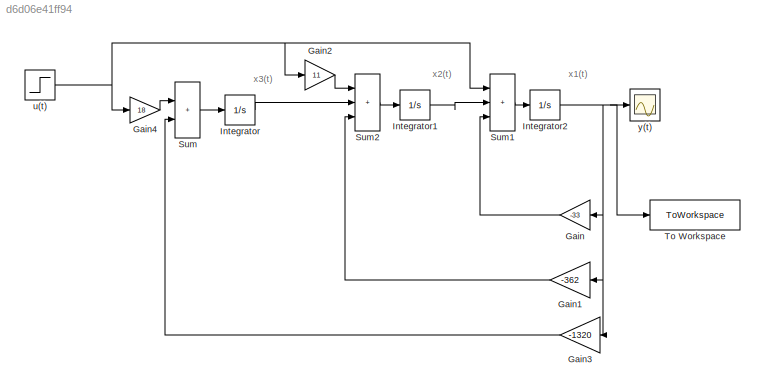
MODEL slx_d6d06e41ff94
KIND model
CONFIG AbsTol = auto
CONFIG EnableMultiTasking = off
CONFIG FixedStep = auto
CONFIG MaxStep = auto
CONFIG MinStep = auto
CONFIG RelTol = 1e-3
CONFIG SampleTimeConstraint = Unconstrained
CONFIG SolverName = VariableStepAuto
CONFIG StartTime = 0.0
CONFIG StopTime = 50
BLOCK [Gain] Gain
  Gain = -33
  NameLocation = top
BLOCK [Gain] Gain1
  Gain = -362
  NameLocation = top
BLOCK [Gain] Gain2
  Gain = 11
BLOCK [Gain] Gain3
  Gain = -1320
  NameLocation = top
BLOCK [Gain] Gain4
  Gain = 18
BLOCK [Integrator] Integrator
  Ports = [1, 1]
BLOCK [Integrator] Integrator1
  Ports = [1, 1]
BLOCK [Integrator] Integrator2
  Ports = [1, 1]
BLOCK [Sum] Sum
  IconShape = rectangular
  Inputs = |++
  Ports = [2, 1]
BLOCK [Sum] Sum1
  IconShape = rectangular
  Inputs = |+++
  Ports = [3, 1]
BLOCK [Sum] Sum2
  IconShape = rectangular
  Inputs = |+++
  Ports = [3, 1]
BLOCK [ToWorkspace] To Workspace
  FixptAsFi = on
  MaxDataPoints = inf
  Ports = [1]
  SampleTime = -1
  SaveFormat = Structure With Time
  VariableName = y2
BLOCK [Step] u(t)
  SampleTime = 0
BLOCK [Scope] y(t)
  Floating = off
  NumInputPorts = 1
  Ports = [1]
  ScopeSpecificationString = Simulink.scopes.TimeScopeBlockCfg('CurrentConfiguration', extmgr.ConfigurationSet(extmgr.Configuration('Core','General UI',true),extmgr.Configuration('Core','Source UI',true),extmgr.Configuration('Sources','WiredSimulink',true),extmgr.Configuration('Visuals','Time Domain',true,'SerializedDisplays',{struct('MinYLimReal','-0.00428','MaxYLimReal','0.03855','YLabelReal','','MinYLimMag','0.00000','MaxY...<+1380ch>
ANNOTATION (root): x1(t)
ANNOTATION (root): x2(t)
ANNOTATION (root): x3(t)
LINE Gain1:1 -> Sum2:3
LINE Gain2:1 -> Sum2:1
LINE Gain3:1 -> Sum:2
LINE Gain4:1 -> Sum:1
LINE Gain:1 -> Sum1:3
LINE Integrator1:1 -> Sum1:2
NET Integrator2:1 -> Gain1:1, Gain3:1, Gain:1, To Workspace:1, y(t):1
LINE Integrator:1 -> Sum2:2
LINE Sum1:1 -> Integrator2:1
LINE Sum2:1 -> Integrator1:1
LINE Sum:1 -> Integrator:1
NET u(t):1 -> Gain2:1, Gain4:1, Sum1:1
note: NET lines group one-source signal fan-out (src -> all destinations, sorted); 1:1 wires keep LINE
